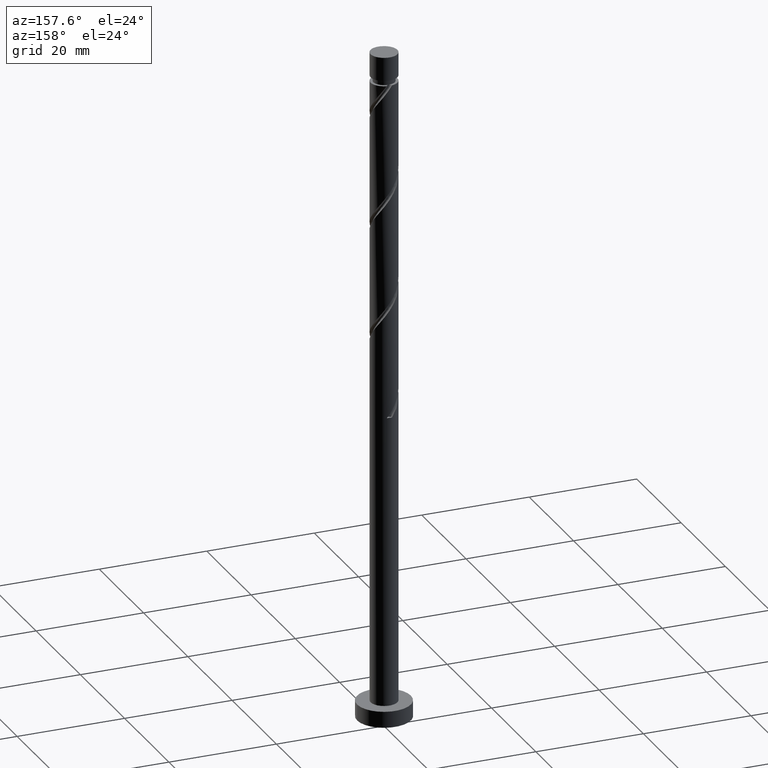
[diagram: clean part render]
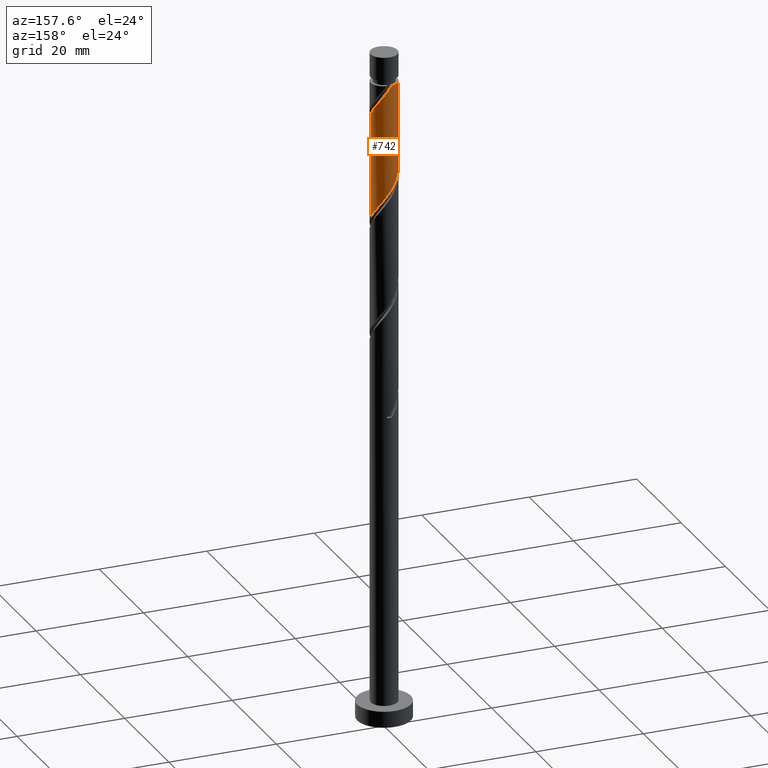
[diagram: same view with one face highlighted and labeled with its STEP entity id]
A machine part, auxiliary view. The second image highlights one B-rep face of the part: STEP entity #742.
In plain terms, the highlighted cylindrical surface (edge-blend (fillet) strip) has radius 2.5 mm, axis along (-0, -0, -1).
Its self-contained STEP definition (entity closure, byte-faithful):
#1 = CARTESIAN_POINT ( 'NONE',  ( 2.500000000000001332, 0.2512594538148114620, 114.1106908893747516 ) ) ;
#7 = CARTESIAN_POINT ( 'NONE',  ( 0.8855355973484250187, 2.371204735821960785, 98.29535542210383881 ) ) ;
#65 = CARTESIAN_POINT ( 'NONE',  ( 0.2839469933725892736, 2.483822478550890001, 118.6078554221038814 ) ) ;
#84 = VERTEX_POINT ( 'NONE', #636 ) ;
#112 = VECTOR ( 'NONE', #536, 1000.000000000000000 ) ;
#144 = VERTEX_POINT ( 'NONE', #448 ) ;
#168 = CIRCLE ( 'NONE', #1205, 2.499999999999996891 ) ;
#192 = CARTESIAN_POINT ( 'NONE',  ( 1.981504166768774056, 1.574936960780885853, 116.0036887554371390 ) ) ;
#230 = EDGE_CURVE ( 'NONE', #84, #144, #960, .T. ) ;
#232 = CARTESIAN_POINT ( 'NONE',  ( 0.000000000000000000, 0.000000000000000000, 125.0000000000000000 ) ) ;
#240 = CARTESIAN_POINT ( 'NONE',  ( -2.371204735821961229, 0.8855355973484247967, 103.5036887554372100 ) ) ;
#241 = ORIENTED_EDGE ( 'NONE', *, *, #454, .T. ) ;
#248 = CARTESIAN_POINT ( 'NONE',  ( 2.499999999999999112, 0.1424343436160865617, 94.46216895278141124 ) ) ;
#264 = CARTESIAN_POINT ( 'NONE',  ( -1.981504166768770503, 1.574936960780884077, 102.4620220887705244 ) ) ;
#308 = CARTESIAN_POINT ( 'NONE',  ( -2.499999999999996891, 0.000000000000000000, 119.6495220887705244 ) ) ;
#321 = CARTESIAN_POINT ( 'NONE',  ( 1.689672165344846544, 1.842554741020976827, 116.5245220887705244 ) ) ;
#353 = ORIENTED_EDGE ( 'NONE', *, *, #1431, .T. ) ;
#370 = CARTESIAN_POINT ( 'NONE',  ( 2.500000000000000000, 2.998620556641159737E-15, 94.27265786357415323 ) ) ;
#376 = ORIENTED_EDGE ( 'NONE', *, *, #791, .F. ) ;
#380 = CARTESIAN_POINT ( 'NONE',  ( 2.274511107092399342, 1.037592995212142988, 95.69118875543719582 ) ) ;
#388 = VECTOR ( 'NONE', #1268, 1000.000000000000000 ) ;
#417 = LINE ( 'NONE', #1259, #112 ) ;
#428 = LINE ( 'NONE', #779, #388 ) ;
#448 = CARTESIAN_POINT ( 'NONE',  ( -0.4974937185533249151, 2.449999999999992184, 119.6495220887705244 ) ) ;
#454 = EDGE_CURVE ( 'NONE', #84, #1098, #428, .T. ) ;
#498 = CARTESIAN_POINT ( 'NONE',  ( -0.6773458265033720505, 2.438849692923733770, 100.3786887554371958 ) ) ;
#506 = CARTESIAN_POINT ( 'NONE',  ( 0.4974937185533113704, 2.449999999999999734, 98.81618875543721003 ) ) ;
#536 = DIRECTION ( 'NONE',  ( -0.000000000000000000, -0.000000000000000000, -1.000000000000000000 ) ) ;
#604 = ORIENTED_EDGE ( 'NONE', *, *, #1570, .F. ) ;
#615 = CARTESIAN_POINT ( 'NONE',  ( -1.689672165344842769, 1.842554741020974385, 101.9411887554371958 ) ) ;
#632 = CARTESIAN_POINT ( 'NONE',  ( 1.574936960780884299, 1.981504166768770503, 97.25368875543721003 ) ) ;
#636 = CARTESIAN_POINT ( 'NONE',  ( 2.500000000000003109, 1.364372353271716682E-15, 113.7763863139669240 ) ) ;
#639 = CARTESIAN_POINT ( 'NONE',  ( -1.397840163920914813, 2.110172521261064915, 101.4203554221038814 ) ) ;
#645 = DIRECTION ( 'NONE',  ( -0.000000000000000000, -0.000000000000000000, -1.000000000000000000 ) ) ;
#672 = CARTESIAN_POINT ( 'NONE',  ( 1.397840163920917256, 2.110172521261066247, 117.0453554221038246 ) ) ;
#730 = CARTESIAN_POINT ( 'NONE',  ( 2.483822478550885560, 0.2839469933725872197, 94.64952208877052442 ) ) ;
#742 = ADVANCED_FACE ( 'NONE', ( #948 ), #955, .T. ) ;
#747 = CARTESIAN_POINT ( 'NONE',  ( 2.500000000000000000, 2.998620556641159737E-15, 94.27265786357415323 ) ) ;
#771 = AXIS2_PLACEMENT_3D ( 'NONE', #232, #1415, #1567 ) ;
#779 = CARTESIAN_POINT ( 'NONE',  ( 2.500000000000000000, 3.061616997868382648E-16, 125.0000000000000000 ) ) ;
#783 = DIRECTION ( 'NONE',  ( -1.000000000000000000, 0.000000000000000000, 0.000000000000000000 ) ) ;
#791 = EDGE_CURVE ( 'NONE', #1084, #1098, #1543, .T. ) ;
#803 = CARTESIAN_POINT ( 'NONE',  ( 0.000000000000000000, 0.000000000000000000, 119.6495220887705244 ) ) ;
#809 = CARTESIAN_POINT ( 'NONE',  ( -0.1094518397581958763, 2.528795264178040902, 119.1286887554371532 ) ) ;
#844 = CARTESIAN_POINT ( 'NONE',  ( -2.500000000000000444, 0.2512594538148011369, 104.3550199548329687 ) ) ;
#853 = CARTESIAN_POINT ( 'NONE',  ( -1.037592995212143432, 2.274511107092399342, 100.8995220887705102 ) ) ;
#860 = CARTESIAN_POINT ( 'NONE',  ( 0.1094518397581969033, 2.528795264178037794, 99.33702208877053863 ) ) ;
#934 = CARTESIAN_POINT ( 'NONE',  ( 2.371204735821965226, 0.8855355973484249077, 114.9620220887704960 ) ) ;
#948 = FACE_OUTER_BOUND ( 'NONE', #1052, .T. ) ;
#955 = CYLINDRICAL_SURFACE ( 'NONE', #771, 2.500000000000000000 ) ;
#960 =( BOUNDED_CURVE ( )  B_SPLINE_CURVE ( 2, ( #1095, #1, #1279, #934, #1531, #192, #321, #672, #1038, #1159, #65, #809, #1175 ),
 .UNSPECIFIED., .F., .T. ) 
 B_SPLINE_CURVE_WITH_KNOTS ( ( 3, 2, 2, 2, 2, 2, 3 ),
 ( 0.6795322023138554712, 0.6875000000000000000, 0.6999999999999999556, 0.7125000000000000222, 0.7249999999999999778, 0.7375000000000000444, 0.7500000000000000000 ),
 .UNSPECIFIED. ) 
 CURVE ( )  GEOMETRIC_REPRESENTATION_ITEM ( )  RATIONAL_B_SPLINE_CURVE ( ( 0.9039174447099425080, 0.9019565955404722501, 0.9090909090909202739, 0.8978984914501365600, 0.9090909090909202739, 0.8978984914501365600, 0.9090909090909202739, 0.8978984914501365600, 0.9090909090909202739, 0.8978984914501365600, 0.9090909090909202739, 0.8978984914501365600, 0.9090909090909202739 ) ) 
 REPRESENTATION_ITEM ( '' )  );
#990 = CARTESIAN_POINT ( 'NONE',  ( 1.230236279064654825, 2.176354451295365422, 97.77452208877049600 ) ) ;
#1038 = CARTESIAN_POINT ( 'NONE',  ( 1.037592995212146540, 2.274511107092402007, 117.5661887554372100 ) ) ;
#1052 = EDGE_LOOP ( 'NONE', ( #1416, #241, #376, #604, #353 ) ) ;
#1084 = VERTEX_POINT ( 'NONE', #1453 ) ;
#1095 = CARTESIAN_POINT ( 'NONE',  ( 2.500000000000003109, 1.364372353271716682E-15, 113.7763863139669240 ) ) ;
#1098 = VERTEX_POINT ( 'NONE', #370 ) ;
#1126 = CARTESIAN_POINT ( 'NONE',  ( -0.2839469933725877748, 2.483822478550885116, 99.85785542210385302 ) ) ;
#1159 = CARTESIAN_POINT ( 'NONE',  ( 0.6773458265033741599, 2.438849692923737766, 118.0870220887705102 ) ) ;
#1175 = CARTESIAN_POINT ( 'NONE',  ( -0.4974937185533249151, 2.449999999999992184, 119.6495220887705244 ) ) ;
#1202 = CARTESIAN_POINT ( 'NONE',  ( -2.500000000000000000, -1.184455119873257873E-15, 104.6893245302408104 ) ) ;
#1205 = AXIS2_PLACEMENT_3D ( 'NONE', #803, #645, #783 ) ;
#1245 = CARTESIAN_POINT ( 'NONE',  ( 2.110172521261064915, 1.397840163920914369, 96.21202208877055284 ) ) ;
#1259 = CARTESIAN_POINT ( 'NONE',  ( -2.500000000000000000, 0.000000000000000000, 125.0000000000000000 ) ) ;
#1268 = DIRECTION ( 'NONE',  ( -0.000000000000000000, -0.000000000000000000, -1.000000000000000000 ) ) ;
#1279 = CARTESIAN_POINT ( 'NONE',  ( 2.450000000000003730, 0.4974937185533107042, 114.4411887554372242 ) ) ;
#1327 = CARTESIAN_POINT ( 'NONE',  ( -2.449999999999999734, 0.4974937185533108153, 104.0245220887705102 ) ) ;
#1335 = CARTESIAN_POINT ( 'NONE',  ( 1.842554741020974607, 1.689672165344842103, 96.73285542210383881 ) ) ;
#1415 = DIRECTION ( 'NONE',  ( -0.000000000000000000, -0.000000000000000000, -1.000000000000000000 ) ) ;
#1416 = ORIENTED_EDGE ( 'NONE', *, *, #230, .F. ) ;
#1431 = EDGE_CURVE ( 'NONE', #1470, #144, #168, .T. ) ;
#1453 = CARTESIAN_POINT ( 'NONE',  ( -2.500000000000000000, -1.184455119873257873E-15, 104.6893245302408104 ) ) ;
#1454 = CARTESIAN_POINT ( 'NONE',  ( 2.438849692923733770, 0.6773458265033719394, 95.17035542210388144 ) ) ;
#1470 = VERTEX_POINT ( 'NONE', #308 ) ;
#1473 = CARTESIAN_POINT ( 'NONE',  ( -2.176354451295365866, 1.230236279064654381, 102.9828554221038530 ) ) ;
#1531 = CARTESIAN_POINT ( 'NONE',  ( 2.176354451295370751, 1.230236279064655491, 115.4828554221038814 ) ) ;
#1543 =( BOUNDED_CURVE ( )  B_SPLINE_CURVE ( 2, ( #1202, #844, #1327, #240, #1473, #264, #615, #639, #853, #498, #1126, #860, #506, #7, #990, #632, #1335, #1245, #380, #1454, #730, #248, #747 ),
 .UNSPECIFIED., .F., .T. ) 
 B_SPLINE_CURVE_WITH_KNOTS ( ( 3, 2, 2, 2, 2, 2, 2, 2, 2, 2, 2, 3 ),
 ( 0.4295322023138550827, 0.4375000000000000000, 0.4500000000000000111, 0.4625000000000000222, 0.4749999999999999778, 0.4874999999999999889, 0.5000000000000000000, 0.5124999999999999556, 0.5250000000000000222, 0.5374999999999999778, 0.5500000000000000444, 0.5545322023138550271 ),
 .UNSPECIFIED. ) 
 CURVE ( )  GEOMETRIC_REPRESENTATION_ITEM ( )  RATIONAL_B_SPLINE_CURVE ( ( 0.9039174447099354026, 0.9019565955404647006, 0.9090909090909131685, 0.8978984914501292325, 0.9090909090909131685, 0.8978984914501292325, 0.9090909090909131685, 0.8978984914501292325, 0.9090909090909131685, 0.8978984914501292325, 0.9090909090909131685, 0.8978984914501292325, 0.9090909090909131685, 0.8978984914501292325, 0.9090909090909131685, 0.8978984914501292325, 0.9090909090909131685, 0.8978984914501292325, 0.9090909090909131685, 0.8978984914501292325, 0.9090909090909131685, 0.9050328050005778113, 0.9039174447099356247 ) ) 
 REPRESENTATION_ITEM ( '' )  );
#1567 = DIRECTION ( 'NONE',  ( -1.000000000000000000, 0.000000000000000000, 0.000000000000000000 ) ) ;
#1570 = EDGE_CURVE ( 'NONE', #1470, #1084, #417, .T. ) ;